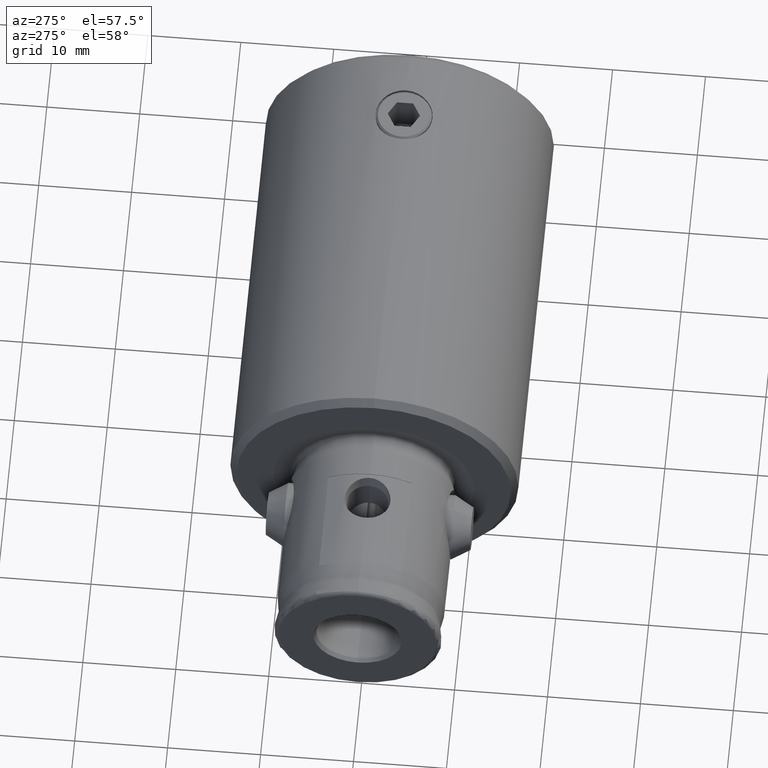
[diagram: clean part render]
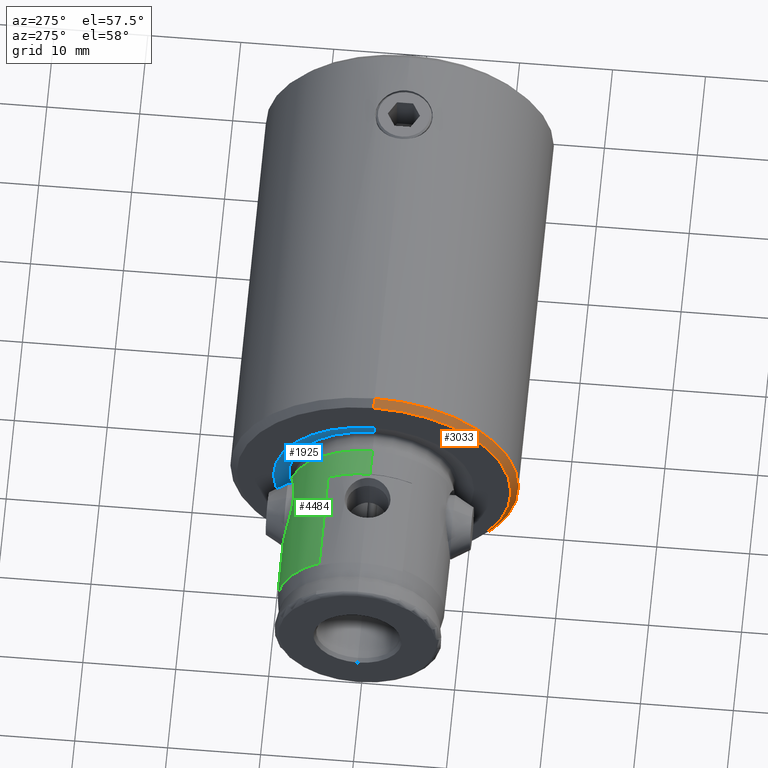
[diagram: same view with three faces highlighted in distinct colors, each labeled with its STEP entity id]
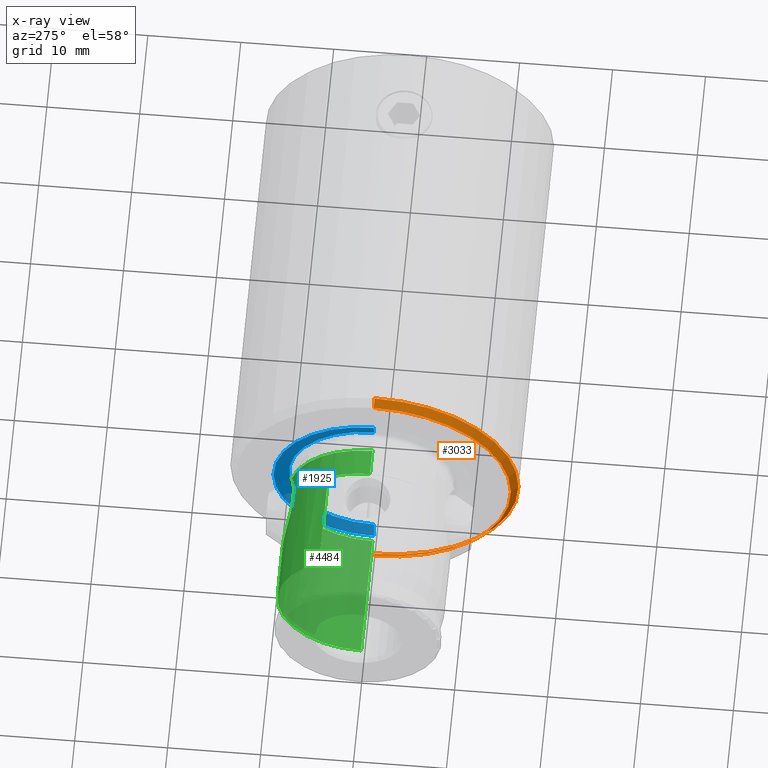
[diagram: x-ray of the same camera — body ghosted, the three highlighted faces saturated]
A machine part, auxiliary view with three faces highlighted in distinct colors.
The next image is the same camera in x-ray (body ghosted, the three faces saturated) — at least one of them is partly hidden behind the body in this view.
Their STEP definitions:

[orange] entity #3033 — the highlighted conical surface has half-angle 45 deg.
#155 = DIRECTION ( 'NONE',  ( -0.7071067811865477948, 1.513360571991787453E-16, -0.7071067811865473507 ) ) ;
#365 = AXIS2_PLACEMENT_3D ( 'NONE', #3699, #2677, #1589 ) ;
#632 = VERTEX_POINT ( 'NONE', #3482 ) ;
#732 = CARTESIAN_POINT ( 'NONE',  ( 8.355000185257099386E-19, -7.628175435064905177E-15, 44.25000000000000000 ) ) ;
#869 = CARTESIAN_POINT ( 'NONE',  ( 8.496610357888562394E-19, -7.757466544133800003E-15, 45.00000000000000000 ) ) ;
#980 = VERTEX_POINT ( 'NONE', #2998 ) ;
#1211 = AXIS2_PLACEMENT_3D ( 'NONE', #869, #4362, #2604 ) ;
#1400 = CONICAL_SURFACE ( 'NONE', #1211, 14.75000000000007994, 0.7853981633974459475 ) ;
#1589 = DIRECTION ( 'NONE',  ( 1.000000000000000000, -4.163335914195345132E-17, 0.0000000000000000000 ) ) ;
#1665 = EDGE_CURVE ( 'NONE', #4563, #3383, #1920, .T. ) ;
#1721 = ORIENTED_EDGE ( 'NONE', *, *, #4419, .T. ) ;
#1832 = DIRECTION ( 'NONE',  ( 1.000000000000000000, -4.163335914195345132E-17, 0.0000000000000000000 ) ) ;
#1833 = CARTESIAN_POINT ( 'NONE',  ( -15.50000000000000000, -3.233416205366640740E-15, 44.25000000000000000 ) ) ;
#1920 = CIRCLE ( 'NONE', #2597, 15.50000000000008349 ) ;
#2013 = ORIENTED_EDGE ( 'NONE', *, *, #4354, .F. ) ;
#2027 = CARTESIAN_POINT ( 'NONE',  ( 14.75000000000007994, -6.565204562735261035E-15, 45.00000000000000000 ) ) ;
#2160 = CARTESIAN_POINT ( 'NONE',  ( 15.50000000000000000, -2.625847800088802331E-15, 44.25000000000000000 ) ) ;
#2230 = CIRCLE ( 'NONE', #365, 14.75000000000007994 ) ;
#2498 = ORIENTED_EDGE ( 'NONE', *, *, #3815, .F. ) ;
#2597 = AXIS2_PLACEMENT_3D ( 'NONE', #732, #3577, #1832 ) ;
#2604 = DIRECTION ( 'NONE',  ( -1.000000000000000000, 4.163335914195345132E-17, 0.0000000000000000000 ) ) ;
#2677 = DIRECTION ( 'NONE',  ( 1.888135635086342558E-20, -1.723881454251955994E-16, 1.000000000000000000 ) ) ;
#2998 = CARTESIAN_POINT ( 'NONE',  ( 14.75000000000000355, -6.470247262911025593E-15, 45.00000000000000000 ) ) ;
#3033 = ADVANCED_FACE ( 'NONE', ( #4214 ), #1400, .T. ) ;
#3068 = LINE ( 'NONE', #3390, #3875 ) ;
#3383 = VERTEX_POINT ( 'NONE', #1833 ) ;
#3390 = CARTESIAN_POINT ( 'NONE',  ( -14.75000000000007994, -7.143374496789982913E-15, 45.00000000000000000 ) ) ;
#3419 = ORIENTED_EDGE ( 'NONE', *, *, #1665, .F. ) ;
#3453 = VECTOR ( 'NONE', #4459, 1000.000000000000000 ) ;
#3482 = CARTESIAN_POINT ( 'NONE',  ( -14.75000000000000355, -7.063116432577304159E-15, 45.00000000000000000 ) ) ;
#3577 = DIRECTION ( 'NONE',  ( -1.888135635086342558E-20, 1.723881454251955994E-16, -1.000000000000000000 ) ) ;
#3699 = CARTESIAN_POINT ( 'NONE',  ( 8.496610357888562394E-19, -7.757466544133800003E-15, 45.00000000000000000 ) ) ;
#3775 = LINE ( 'NONE', #2027, #3453 ) ;
#3815 = EDGE_CURVE ( 'NONE', #980, #4563, #3775, .T. ) ;
#3875 = VECTOR ( 'NONE', #155, 1000.000000000000000 ) ;
#4144 = EDGE_LOOP ( 'NONE', ( #2498, #2013, #1721, #3419 ) ) ;
#4214 = FACE_OUTER_BOUND ( 'NONE', #4144, .T. ) ;
#4354 = EDGE_CURVE ( 'NONE', #632, #980, #2230, .T. ) ;
#4362 = DIRECTION ( 'NONE',  ( -1.888135635086342558E-20, 1.723881454251955994E-16, -1.000000000000000000 ) ) ;
#4419 = EDGE_CURVE ( 'NONE', #632, #3383, #3068, .T. ) ;
#4459 = DIRECTION ( 'NONE',  ( 0.7071067811865477948, 1.790532016770275766E-16, -0.7071067811865473507 ) ) ;
#4563 = VERTEX_POINT ( 'NONE', #2160 ) ;

[blue] entity #1925 — the highlighted conical surface has half-angle 75 deg.
#240 = AXIS2_PLACEMENT_3D ( 'NONE', #766, #325, #4307 ) ;
#250 = DIRECTION ( 'NONE',  ( 1.000000000000000000, -4.163335914195346981E-17, 0.0000000000000000000 ) ) ;
#268 = CARTESIAN_POINT ( 'NONE',  ( 9.179409522551257083, -8.135953775655621619E-15, 44.56703708685546417 ) ) ;
#281 = DIRECTION ( 'NONE',  ( -1.888135635086342558E-20, 1.723881454251955994E-16, -1.000000000000000000 ) ) ;
#325 = DIRECTION ( 'NONE',  ( 1.888135635086342558E-20, -1.723881454251955994E-16, 1.000000000000000000 ) ) ;
#367 = CARTESIAN_POINT ( 'NONE',  ( 9.179409522551305045, -8.064998523862372024E-15, 44.56703708685546417 ) ) ;
#463 = FACE_OUTER_BOUND ( 'NONE', #1535, .T. ) ;
#766 = CARTESIAN_POINT ( 'NONE',  ( 8.414861087390664326E-19, -7.682828870498924992E-15, 44.56703708685546417 ) ) ;
#988 = DIRECTION ( 'NONE',  ( 1.888135635086342558E-20, -1.723881454251955994E-16, 1.000000000000000000 ) ) ;
#1002 = CARTESIAN_POINT ( 'NONE',  ( 8.414861087390664326E-19, -7.682828870498924992E-15, 44.56703708685546417 ) ) ;
#1034 = ORIENTED_EDGE ( 'NONE', *, *, #2833, .F. ) ;
#1107 = VECTOR ( 'NONE', #2885, 1000.000000000000000 ) ;
#1108 = DIRECTION ( 'NONE',  ( 0.9659258262890703106, -8.483207201632335793E-17, 0.2588190451025132455 ) ) ;
#1112 = CARTESIAN_POINT ( 'NONE',  ( -9.179409522551305045, -6.176505768149960080E-15, 44.56703708685546417 ) ) ;
#1130 = CONICAL_SURFACE ( 'NONE', #240, 9.179409522551305045, 1.308996938995753645 ) ;
#1214 = LINE ( 'NONE', #1112, #1107 ) ;
#1397 = DIRECTION ( 'NONE',  ( -1.000000000000000000, 4.163335914195352527E-17, 0.0000000000000000000 ) ) ;
#1535 = EDGE_LOOP ( 'NONE', ( #1034, #4483, #2302, #3477 ) ) ;
#1568 = CIRCLE ( 'NONE', #1768, 9.179409522551305045 ) ;
#1711 = EDGE_CURVE ( 'NONE', #2549, #4510, #2307, .T. ) ;
#1768 = AXIS2_PLACEMENT_3D ( 'NONE', #1002, #281, #1397 ) ;
#1917 = CARTESIAN_POINT ( 'NONE',  ( -10.79524911219978733, -5.985987333693355798E-15, 45.00000000000000000 ) ) ;
#1925 = ADVANCED_FACE ( 'NONE', ( #463 ), #1130, .F. ) ;
#2057 = CARTESIAN_POINT ( 'NONE',  ( 8.496610357888562394E-19, -7.757466544133800003E-15, 45.00000000000000000 ) ) ;
#2258 = VECTOR ( 'NONE', #1108, 1000.000000000000000 ) ;
#2302 = ORIENTED_EDGE ( 'NONE', *, *, #1711, .T. ) ;
#2307 = LINE ( 'NONE', #367, #2258 ) ;
#2444 = AXIS2_PLACEMENT_3D ( 'NONE', #2057, #988, #250 ) ;
#2529 = CARTESIAN_POINT ( 'NONE',  ( 10.79524911219978733, -8.206909027448871215E-15, 45.00000000000000000 ) ) ;
#2549 = VERTEX_POINT ( 'NONE', #268 ) ;
#2833 = EDGE_CURVE ( 'NONE', #4425, #3709, #1214, .T. ) ;
#2885 = DIRECTION ( 'NONE',  ( -0.9659258262890703106, 1.138891987823059338E-16, 0.2588190451025132455 ) ) ;
#3180 = EDGE_CURVE ( 'NONE', #4425, #2549, #1568, .T. ) ;
#3346 = CARTESIAN_POINT ( 'NONE',  ( -9.179409522551257083, -6.081246550921659911E-15, 44.56703708685546417 ) ) ;
#3407 = CIRCLE ( 'NONE', #2444, 10.79524911219978911 ) ;
#3477 = ORIENTED_EDGE ( 'NONE', *, *, #4444, .T. ) ;
#3709 = VERTEX_POINT ( 'NONE', #1917 ) ;
#4307 = DIRECTION ( 'NONE',  ( 1.000000000000000000, -4.163335914195352527E-17, 0.0000000000000000000 ) ) ;
#4425 = VERTEX_POINT ( 'NONE', #3346 ) ;
#4444 = EDGE_CURVE ( 'NONE', #4510, #3709, #3407, .T. ) ;
#4483 = ORIENTED_EDGE ( 'NONE', *, *, #3180, .T. ) ;
#4510 = VERTEX_POINT ( 'NONE', #2529 ) ;

[green] entity #4484 — the highlighted cylindrical surface (partial cylindrical patch) has radius 9 mm, axis along (1, 0, -0).
#17 = DIRECTION ( 'NONE',  ( 1.888135635086342558E-20, -1.723881454251955994E-16, 1.000000000000000000 ) ) ;
#19 = VERTEX_POINT ( 'NONE', #3471 ) ;
#44 = CARTESIAN_POINT ( 'NONE',  ( 2.543409744209699674, 8.638854640561579146, 53.05529334456086588 ) ) ;
#59 = CARTESIAN_POINT ( 'NONE',  ( -3.706437500783670291, 8.201361847548591655, 49.87696350292557668 ) ) ;
#63 = CARTESIAN_POINT ( 'NONE',  ( 3.463403015203017521, 8.307636748204625832, 48.46923542781190974 ) ) ;
#218 = DIRECTION ( 'NONE',  ( -1.000000000000000000, 4.163335914195351911E-17, 0.0000000000000000000 ) ) ;
#221 = ORIENTED_EDGE ( 'NONE', *, *, #3413, .T. ) ;
#352 = DIRECTION ( 'NONE',  ( 1.000000000000000000, -4.163335914195351911E-17, 0.0000000000000000000 ) ) ;
#386 = CARTESIAN_POINT ( 'NONE',  ( 7.794228634059988892, 4.500000000000010658, 49.75000000000000000 ) ) ;
#405 = CARTESIAN_POINT ( 'NONE',  ( 2.086879373168906593, 8.756119011226676463, 53.44531642035553887 ) ) ;
#415 = VERTEX_POINT ( 'NONE', #386 ) ;
#417 = CARTESIAN_POINT ( 'NONE',  ( -0.4088599969152607039, 8.999999999999991118, 54.16395280956803049 ) ) ;
#425 = DIRECTION ( 'NONE',  ( 1.000000000000000000, -4.163335914195351911E-17, 0.0000000000000000000 ) ) ;
#435 = CARTESIAN_POINT ( 'NONE',  ( 3.391538029023050349, 8.336992790674930376, 51.68393921446603656 ) ) ;
#447 = CARTESIAN_POINT ( 'NONE',  ( -1.391340555968388903, 8.893864760577786299, 53.86487811116461444 ) ) ;
#480 = CARTESIAN_POINT ( 'NONE',  ( -2.660235933625072047, 8.603377274519386830, 47.07251313885865329 ) ) ;
#495 = EDGE_CURVE ( 'NONE', #599, #3611, #4051, .T. ) ;
#599 = VERTEX_POINT ( 'NONE', #3844 ) ;
#619 = AXIS2_PLACEMENT_3D ( 'NONE', #3766, #3489, #218 ) ;
#730 = CARTESIAN_POINT ( 'NONE',  ( 7.794228634059988892, 4.500000000000008882, 65.00000000000000000 ) ) ;
#758 = CARTESIAN_POINT ( 'NONE',  ( 3.710283895054679704, 8.199625617515533094, 49.67352196481216708 ) ) ;
#785 = CARTESIAN_POINT ( 'NONE',  ( 1.924780674171907346, 8.793540760925946387, 53.56311199207856788 ) ) ;
#809 = CARTESIAN_POINT ( 'NONE',  ( -2.393576954959078851, 8.677317510719165128, 53.18318469639449120 ) ) ;
#825 = CARTESIAN_POINT ( 'NONE',  ( -3.612497686747091930, 8.243349802352305744, 49.06062750825754648 ) ) ;
#833 = ORIENTED_EDGE ( 'NONE', *, *, #1695, .T. ) ;
#884 = CARTESIAN_POINT ( 'NONE',  ( -3.512649766894649250, 8.286389268905361760, 48.66594692546855327 ) ) ;
#889 = CARTESIAN_POINT ( 'NONE',  ( -9.000000000000000000, -8.895062789593788023E-15, 46.79524911219962746 ) ) ;
#892 = EDGE_CURVE ( 'NONE', #3611, #2220, #3360, .T. ) ;
#1024 = EDGE_CURVE ( 'NONE', #19, #3960, #3586, .T. ) ;
#1053 = CIRCLE ( 'NONE', #2719, 9.000000000000051514 ) ;
#1080 = DIRECTION ( 'NONE',  ( 1.888135635086342558E-20, -1.723881454251955994E-16, 1.000000000000000000 ) ) ;
#1113 = CARTESIAN_POINT ( 'NONE',  ( 3.462340803532942157, 8.307588482220923609, 51.49078937586077842 ) ) ;
#1125 = CARTESIAN_POINT ( 'NONE',  ( 3.130501629220326709, 8.438769778485518458, 52.23266495995195413 ) ) ;
#1139 = CARTESIAN_POINT ( 'NONE',  ( -2.918223267508819330, 8.514513484589343761, 52.57039774868362514 ) ) ;
#1143 = CARTESIAN_POINT ( 'NONE',  ( 1.393063488794629157, 8.893601002514056830, 53.86411270039278065 ) ) ;
#1180 = CARTESIAN_POINT ( 'NONE',  ( -9.000000000000047962, -1.083052922036012668E-14, 65.00000000000000000 ) ) ;
#1228 = CARTESIAN_POINT ( 'NONE',  ( -2.906318574976296087, 8.520538261741357644, 47.38759075782740382 ) ) ;
#1436 = VERTEX_POINT ( 'NONE', #889 ) ;
#1505 = CARTESIAN_POINT ( 'NONE',  ( 8.835577740148683331E-19, -8.066946209162125348E-15, 46.79524911219962746 ) ) ;
#1513 = CARTESIAN_POINT ( 'NONE',  ( 1.578600780290604799, 8.862232186881454865, 53.77239472907693596 ) ) ;
#1540 = CARTESIAN_POINT ( 'NONE',  ( -3.696668575392180855, 8.205808937000856673, 49.67282159399239561 ) ) ;
#1561 = LINE ( 'NONE', #1180, #2732 ) ;
#1584 = AXIS2_PLACEMENT_3D ( 'NONE', #2521, #17, #352 ) ;
#1612 = CARTESIAN_POINT ( 'NONE',  ( -2.362896889755953911, 8.684279952211490183, 46.79524911219962746 ) ) ;
#1626 = ORIENTED_EDGE ( 'NONE', *, *, #495, .T. ) ;
#1695 = EDGE_CURVE ( 'NONE', #3960, #599, #3262, .T. ) ;
#1776 = EDGE_LOOP ( 'NONE', ( #2587, #2166, #833, #1626, #4132, #4018, #2053, #3037, #221 ) ) ;
#1852 = CARTESIAN_POINT ( 'NONE',  ( 2.809872554484076801, 8.553135070071324009, 52.74231595443652054 ) ) ;
#1860 = CARTESIAN_POINT ( 'NONE',  ( -3.463510055642109453, 8.307099265366728602, 51.48731650923355829 ) ) ;
#1911 = VECTOR ( 'NONE', #3676, 1000.000000000000000 ) ;
#1952 = CIRCLE ( 'NONE', #4609, 9.000000000000047962 ) ;
#2005 = CYLINDRICAL_SURFACE ( 'NONE', #619, 9.000000000000047962 ) ;
#2053 = ORIENTED_EDGE ( 'NONE', *, *, #4542, .F. ) ;
#2166 = ORIENTED_EDGE ( 'NONE', *, *, #1024, .T. ) ;
#2179 = DIRECTION ( 'NONE',  ( 1.000000000000000000, -4.163335914195350679E-17, 0.0000000000000000000 ) ) ;
#2191 = DIRECTION ( 'NONE',  ( -1.888135635086342558E-20, 1.723881454251955994E-16, -1.000000000000000000 ) ) ;
#2197 = CARTESIAN_POINT ( 'NONE',  ( -1.575978440672662018, 8.862716122886581616, 53.77384280542384687 ) ) ;
#2200 = CARTESIAN_POINT ( 'NONE',  ( 3.312762380287376462, 8.370896504934826510, 48.09379917924290737 ) ) ;
#2218 = CARTESIAN_POINT ( 'NONE',  ( 2.362896889755953467, 8.684279952211490183, 46.79524911219962746 ) ) ;
#2220 = VERTEX_POINT ( 'NONE', #3007 ) ;
#2226 = CARTESIAN_POINT ( 'NONE',  ( -3.695811705332137542, 8.206158434084420250, 50.48915109799894196 ) ) ;
#2228 = CARTESIAN_POINT ( 'NONE',  ( 3.699105758788047371, 8.204671431424344519, 50.29016901430627229 ) ) ;
#2484 = VERTEX_POINT ( 'NONE', #3799 ) ;
#2521 = CARTESIAN_POINT ( 'NONE',  ( 8.835577740148683331E-19, -8.066946209162125348E-15, 46.79524911219962746 ) ) ;
#2556 = CARTESIAN_POINT ( 'NONE',  ( 3.664488169284218610, 8.220919367261380728, 49.26821254202924649 ) ) ;
#2564 = CARTESIAN_POINT ( 'NONE',  ( -3.737024137050935974E-16, 8.999999999999991118, 54.16395280956803049 ) ) ;
#2578 = DIRECTION ( 'NONE',  ( 1.888135635086342558E-20, -1.723881454251955994E-16, 1.000000000000000000 ) ) ;
#2584 = CARTESIAN_POINT ( 'NONE',  ( 3.681525506942497916, 8.212642687754931003, 50.49754678188789114 ) ) ;
#2587 = ORIENTED_EDGE ( 'NONE', *, *, #3599, .F. ) ;
#2602 = CARTESIAN_POINT ( 'NONE',  ( -0.8220872526984303041, 8.970552281630718383, 54.08485416867922169 ) ) ;
#2719 = AXIS2_PLACEMENT_3D ( 'NONE', #2898, #3256, #2179 ) ;
#2732 = VECTOR ( 'NONE', #2191, 1000.000000000000000 ) ;
#2898 = CARTESIAN_POINT ( 'NONE',  ( 1.147042398314949934E-18, -1.047257983458063710E-14, 60.75000000000000000 ) ) ;
#2933 = CARTESIAN_POINT ( 'NONE',  ( -2.537666760067042837, 8.635915582133264934, 53.03848380785913008 ) ) ;
#2955 = CARTESIAN_POINT ( 'NONE',  ( 3.225396514969615325, 8.402666024262611444, 52.05503607443981196 ) ) ;
#2962 = CARTESIAN_POINT ( 'NONE',  ( -1.923865371437278871, 8.793758420204826010, 53.56380120527333588 ) ) ;
#2978 = CARTESIAN_POINT ( 'NONE',  ( -3.649802151013808782, 8.226761399561205224, 49.26437558660433069 ) ) ;
#3007 = CARTESIAN_POINT ( 'NONE',  ( -2.362896889755953911, 8.684279952211490183, 46.79524911219962746 ) ) ;
#3037 = ORIENTED_EDGE ( 'NONE', *, *, #3357, .F. ) ;
#3128 = CARTESIAN_POINT ( 'NONE',  ( -3.737024137050935974E-16, 8.999999999999991118, 54.16395280956803049 ) ) ;
#3214 = CARTESIAN_POINT ( 'NONE',  ( 0.2047296981560668139, 8.999999999999991118, 54.16395280956804470 ) ) ;
#3243 = CARTESIAN_POINT ( 'NONE',  ( 0.4120592208317886418, 8.992852505321708989, 54.14448648472330206 ) ) ;
#3256 = DIRECTION ( 'NONE',  ( 1.888135635086342558E-20, -1.723881454251955994E-16, 1.000000000000000000 ) ) ;
#3262 = CIRCLE ( 'NONE', #4151, 9.000000000000047962 ) ;
#3273 = CARTESIAN_POINT ( 'NONE',  ( 2.646701209583142145, 8.603029546388743398, 47.08156190997904389 ) ) ;
#3284 = CARTESIAN_POINT ( 'NONE',  ( -2.799495018550140379, 8.554625542242877856, 52.73240655396897836 ) ) ;
#3287 = CARTESIAN_POINT ( 'NONE',  ( 3.009885235650128887, 8.482462295192338075, 47.56677448858474833 ) ) ;
#3332 = EDGE_CURVE ( 'NONE', #2220, #1436, #3460, .T. ) ;
#3357 = EDGE_CURVE ( 'NONE', #4180, #2484, #1053, .T. ) ;
#3360 = B_SPLINE_CURVE_WITH_KNOTS ( 'NONE', 3,
 ( #2564, #417, #2602, #447, #2197, #2962, #3622, #809, #2933, #3284, #1139, #3607, #3636, #3664, #1860, #4343, #2226, #59, #1540, #2978, #825, #884, #4044, #3388, #3706, #1228, #480, #1612 ),
 .UNSPECIFIED., .F., .F.,
 ( 4, 2, 2, 2, 2, 2, 2, 2, 2, 2, 2, 2, 2, 4 ),
 ( 0.01131770587915488339, 0.01253723918276996099, 0.01314700583457749719, 0.01375677248638503339, 0.01436653913819256959, 0.01497630579000010578, 0.01558607244180764025, 0.01619583909361517471, 0.01741537239723024710, 0.01802513904903778330, 0.01863490570084531950, 0.01924467235265285570, 0.01985443900446039189, 0.02107397230807544347 ),
 .UNSPECIFIED. ) ;
#3388 = CARTESIAN_POINT ( 'NONE',  ( -3.298626183112399080, 8.374110569409609184, 48.09749495123944740 ) ) ;
#3413 = EDGE_CURVE ( 'NONE', #4180, #415, #4280, .T. ) ;
#3430 = CARTESIAN_POINT ( 'NONE',  ( 9.000000000000000000, -8.542281134916331274E-15, 46.79524911219962746 ) ) ;
#3460 = CIRCLE ( 'NONE', #1584, 9.000000000000047962 ) ;
#3471 = CARTESIAN_POINT ( 'NONE',  ( 9.000000000000000000, -8.542281134916334429E-15, 49.75000000000000000 ) ) ;
#3489 = DIRECTION ( 'NONE',  ( -1.888135635086342558E-20, 1.723881454251955994E-16, -1.000000000000000000 ) ) ;
#3564 = FACE_OUTER_BOUND ( 'NONE', #1776, .T. ) ;
#3586 = LINE ( 'NONE', #4431, #1911 ) ;
#3599 = EDGE_CURVE ( 'NONE', #19, #415, #1952, .T. ) ;
#3607 = CARTESIAN_POINT ( 'NONE',  ( -3.132714132039698729, 8.437954081719237109, 52.22883375925553651 ) ) ;
#3611 = VERTEX_POINT ( 'NONE', #4350 ) ;
#3622 = CARTESIAN_POINT ( 'NONE',  ( -2.086997798544168781, 8.756111580491447555, 53.44532814966647294 ) ) ;
#3636 = CARTESIAN_POINT ( 'NONE',  ( -3.228953985650755865, 8.401293929937919458, 52.04791882474323472 ) ) ;
#3638 = CARTESIAN_POINT ( 'NONE',  ( 1.013022636183340319, 8.944861643106161608, 54.01117003519853199 ) ) ;
#3664 = CARTESIAN_POINT ( 'NONE',  ( -3.394074927124097307, 8.335954590071207093, 51.67741285928810413 ) ) ;
#3676 = DIRECTION ( 'NONE',  ( -1.888135635086342558E-20, 1.723881454251955994E-16, -1.000000000000000000 ) ) ;
#3706 = CARTESIAN_POINT ( 'NONE',  ( -3.209090536697180251, 8.409120222088821706, 47.91289974448883981 ) ) ;
#3766 = CARTESIAN_POINT ( 'NONE',  ( 1.227288162806122705E-18, -1.120522945263771041E-14, 65.00000000000000000 ) ) ;
#3799 = CARTESIAN_POINT ( 'NONE',  ( -9.000000000000003553, -8.895062789593800644E-15, 60.75000000000000000 ) ) ;
#3844 = CARTESIAN_POINT ( 'NONE',  ( 2.362896889755953467, 8.684279952211490183, 46.79524911219962746 ) ) ;
#3895 = DIRECTION ( 'NONE',  ( -1.888135635086342558E-20, 1.723881454251955994E-16, -1.000000000000000000 ) ) ;
#3951 = CARTESIAN_POINT ( 'NONE',  ( 3.620075022492055261, 8.239914247522960977, 50.90183009507916978 ) ) ;
#3960 = VERTEX_POINT ( 'NONE', #3430 ) ;
#3967 = CARTESIAN_POINT ( 'NONE',  ( 2.510912085628562274, 8.644006648277365201, 46.93327097666904990 ) ) ;
#3984 = CARTESIAN_POINT ( 'NONE',  ( 0.8170132637749472071, 8.965136826103616841, 54.06769937397194781 ) ) ;
#4018 = ORIENTED_EDGE ( 'NONE', *, *, #3332, .T. ) ;
#4044 = CARTESIAN_POINT ( 'NONE',  ( -3.449966827168436279, 8.312905112898244298, 48.47333919116833556 ) ) ;
#4051 = B_SPLINE_CURVE_WITH_KNOTS ( 'NONE', 3,
 ( #2218, #3967, #3273, #4347, #3287, #2200, #63, #2556, #758, #2228, #2584, #3951, #4330, #1113, #435, #2955, #1125, #1852, #44, #405, #785, #1513, #1143, #3638, #3984, #3243, #3214, #3128 ),
 .UNSPECIFIED., .F., .F.,
 ( 4, 2, 2, 2, 2, 2, 2, 2, 2, 2, 2, 2, 2, 4 ),
 ( 0.001547136509723293476, 0.002157797095312773226, 0.002768457680902252759, 0.003989778852081210525, 0.005211100023260169592, 0.005821760608849648258, 0.006432421194439126924, 0.007043081780028606458, 0.007653742365618085124, 0.008875063536797025976, 0.009485724122386489029, 0.01009638470797595382, 0.01070704529356541861, 0.01131770587915488339 ),
 .UNSPECIFIED. ) ;
#4132 = ORIENTED_EDGE ( 'NONE', *, *, #892, .T. ) ;
#4151 = AXIS2_PLACEMENT_3D ( 'NONE', #1505, #1080, #4309 ) ;
#4180 = VERTEX_POINT ( 'NONE', #4627 ) ;
#4280 = LINE ( 'NONE', #730, #4340 ) ;
#4309 = DIRECTION ( 'NONE',  ( 1.000000000000000000, -4.163335914195351911E-17, 0.0000000000000000000 ) ) ;
#4323 = CARTESIAN_POINT ( 'NONE',  ( 9.393474784554581443E-19, -8.576310234903481959E-15, 49.75000000000000000 ) ) ;
#4330 = CARTESIAN_POINT ( 'NONE',  ( 3.576262880894876428, 8.259187250357774346, 51.10045673348369633 ) ) ;
#4340 = VECTOR ( 'NONE', #3895, 1000.000000000000000 ) ;
#4343 = CARTESIAN_POINT ( 'NONE',  ( -3.633711737829281585, 8.234764079627531430, 50.90253890190206931 ) ) ;
#4347 = CARTESIAN_POINT ( 'NONE',  ( 2.895852612426081496, 8.522392992343853280, 47.39766578791624596 ) ) ;
#4350 = CARTESIAN_POINT ( 'NONE',  ( -3.737024137050935974E-16, 8.999999999999991118, 54.16395280956803049 ) ) ;
#4431 = CARTESIAN_POINT ( 'NONE',  ( 9.000000000000047962, -1.047774756568267151E-14, 65.00000000000000000 ) ) ;
#4484 = ADVANCED_FACE ( 'NONE', ( #3564 ), #2005, .T. ) ;
#4542 = EDGE_CURVE ( 'NONE', #2484, #1436, #1561, .T. ) ;
#4609 = AXIS2_PLACEMENT_3D ( 'NONE', #4323, #2578, #425 ) ;
#4627 = CARTESIAN_POINT ( 'NONE',  ( 7.794228634059992444, 4.500000000000010658, 60.75000000000000000 ) ) ;